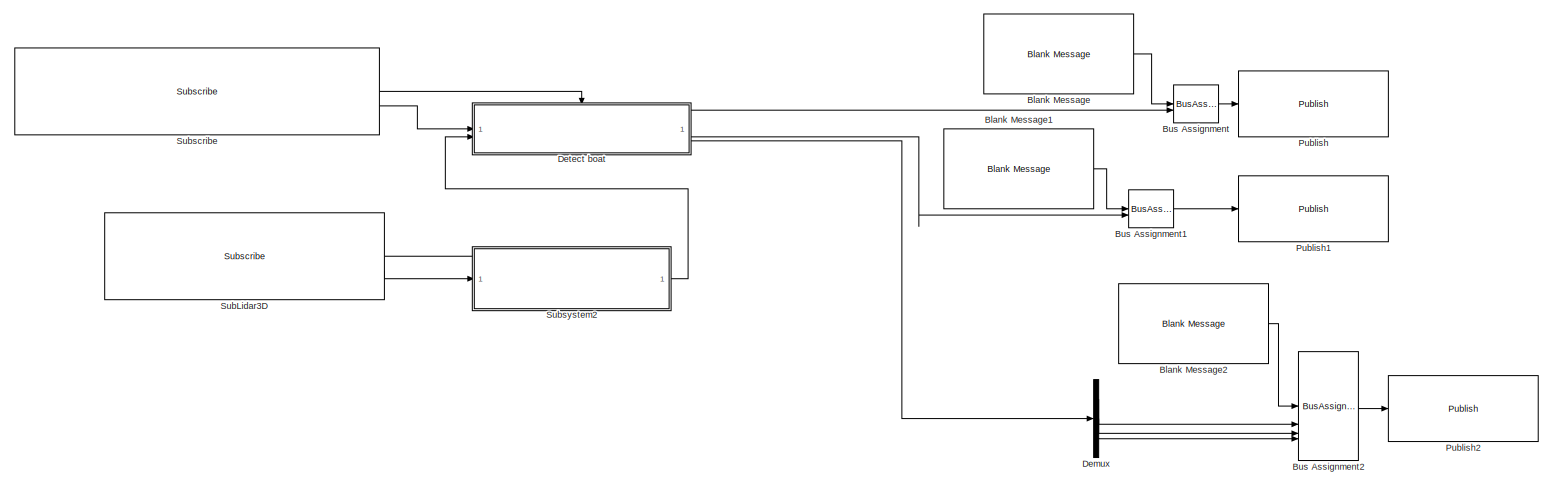
[diagram: root canvas - part 1/1, most of the canvas]
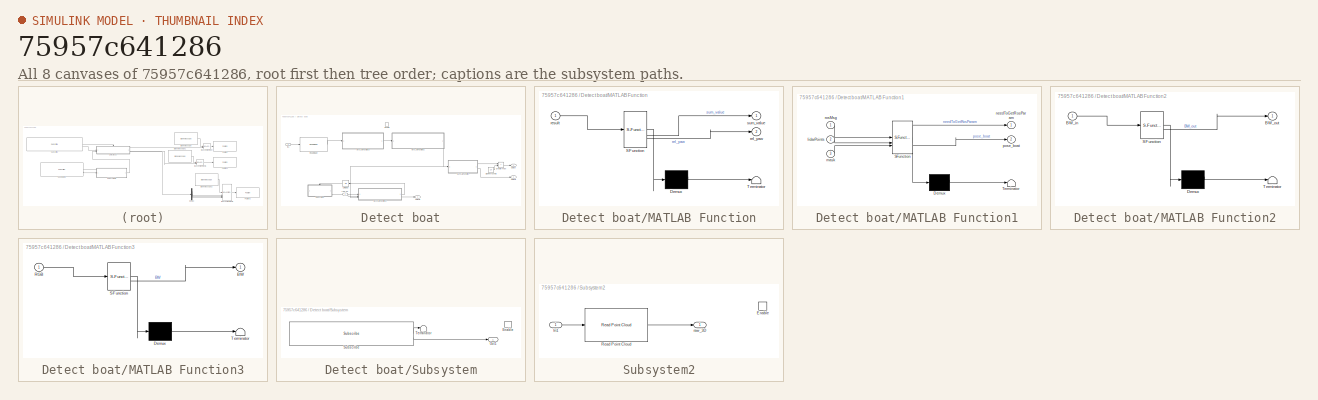
[diagram: thumbnail index - all 8 canvases of the model, root first then tree order]
MODEL slx_75957c641286
KIND model
CONFIG AbsTol = auto
CONFIG EnableMultiTasking = off
CONFIG FixedStep = auto
CONFIG MaxStep = auto
CONFIG MinStep = auto
CONFIG RelTol = 1e-3
CONFIG SampleTimeConstraint = Unconstrained
CONFIG SolverName = FixedStepAuto
CONFIG StartTime = 0.0
CONFIG StopTime = Inf
WORKSPACE source: mxarray member
WORKSPACE SL_ROS_VariableLengthArrays_MaxSizes: object (value not decoded)
BLOCK [Reference] Blank Message  REF=ros2lib/Blank Message  (lib defined in slx_3c1549211f48)
  SourceBlock = ros2lib/Blank Message
  SourceType = ROS2 Blank Message
BLOCK [Reference] Blank Message1  REF=ros2lib/Blank Message  (lib defined in slx_3c1549211f48)
  SourceBlock = ros2lib/Blank Message
  SourceType = ROS2 Blank Message
BLOCK [Reference] Blank Message2  REF=ros2lib/Blank Message  (lib defined in slx_3c1549211f48)
  SourceBlock = ros2lib/Blank Message
  SourceType = ROS2 Blank Message
BLOCK [BusAssignment] Bus Assignment
  AssignedSignals = data
BLOCK [BusAssignment] Bus Assignment1
  AssignedSignals = data
BLOCK [BusAssignment] Bus Assignment2
  AssignedSignals = pose.position.x,pose.position.y,pose.position.z
BLOCK [Demux] Demux
  Outputs = 3
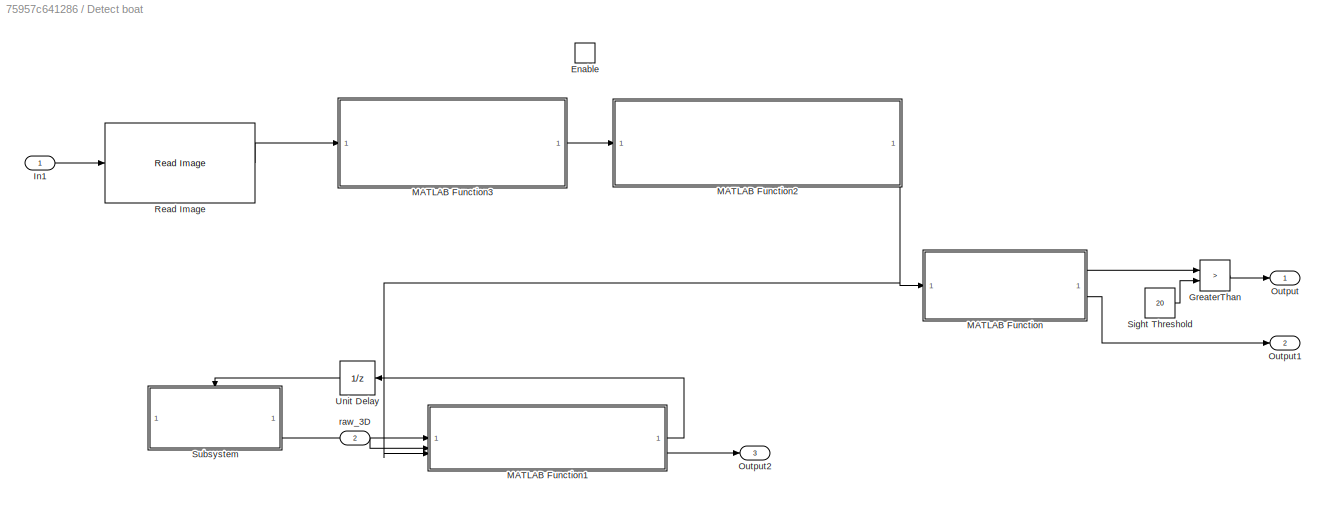
BLOCK [SubSystem] Detect boat
BLOCK [EnablePort] Detect boat/Enable
BLOCK [RelationalOperator] Detect boat/GreaterThan
  InputSameDT = off
  Operator = >
  OutDataTypeStr = boolean
  RndMeth = Simplest
BLOCK [Inport] Detect boat/In1
BLOCK [SubSystem] Detect boat/MATLAB Function
  ErrorFcn = Stateflow.Translate.translate
  PermitHierarchicalResolution = ExplicitOnly
  SFBlockType = MATLAB Function
  TreatAsAtomicUnit = on
BLOCK [Demux] Detect boat/MATLAB Function/ Demux 
  Outputs = 1
BLOCK [S-Function] Detect boat/MATLAB Function/ SFunction 
  EnableBusSupport = on
  FunctionName = sf_sfun
  PortCounts = [1 3]
  SFcnIsStateOwnerBlock = off
  SFunctionDeploymentMode = off
  Tag = Stateflow S-Function 2
BLOCK [Terminator] Detect boat/MATLAB Function/ Terminator 
BLOCK [Outport] Detect boat/MATLAB Function/rel_yaw
  Port = 2
BLOCK [Inport] Detect boat/MATLAB Function/result
BLOCK [Outport] Detect boat/MATLAB Function/sum_value
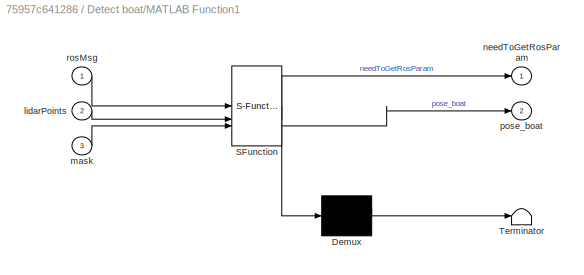
BLOCK [SubSystem] Detect boat/MATLAB Function1
  ErrorFcn = Stateflow.Translate.translate
  PermitHierarchicalResolution = ExplicitOnly
  SFBlockType = MATLAB Function
  TreatAsAtomicUnit = on
BLOCK [Demux] Detect boat/MATLAB Function1/ Demux 
  Outputs = 1
BLOCK [S-Function] Detect boat/MATLAB Function1/ SFunction 
  EnableBusSupport = on
  FunctionName = sf_sfun
  PortCounts = [3 3]
  SFcnIsStateOwnerBlock = off
  SFunctionDeploymentMode = off
  Tag = Stateflow S-Function 1
BLOCK [Terminator] Detect boat/MATLAB Function1/ Terminator 
BLOCK [Inport] Detect boat/MATLAB Function1/lidarPoints
  Port = 2
BLOCK [Inport] Detect boat/MATLAB Function1/mask
  Port = 3
BLOCK [Outport] Detect boat/MATLAB Function1/needToGetRosParam
BLOCK [Outport] Detect boat/MATLAB Function1/pose_boat
  Port = 2
BLOCK [Inport] Detect boat/MATLAB Function1/rosMsg
BLOCK [SubSystem] Detect boat/MATLAB Function2
  ErrorFcn = Stateflow.Translate.translate
  PermitHierarchicalResolution = ExplicitOnly
  SFBlockType = MATLAB Function
  TreatAsAtomicUnit = on
BLOCK [Demux] Detect boat/MATLAB Function2/ Demux 
  Outputs = 1
BLOCK [S-Function] Detect boat/MATLAB Function2/ SFunction 
  EnableBusSupport = on
  FunctionName = sf_sfun
  PortCounts = [1 2]
  SFcnIsStateOwnerBlock = off
  SFunctionDeploymentMode = off
  Tag = Stateflow S-Function 5
BLOCK [Terminator] Detect boat/MATLAB Function2/ Terminator 
BLOCK [Inport] Detect boat/MATLAB Function2/BW_in
BLOCK [Outport] Detect boat/MATLAB Function2/BW_out
BLOCK [SubSystem] Detect boat/MATLAB Function3
  ErrorFcn = Stateflow.Translate.translate
  PermitHierarchicalResolution = ExplicitOnly
  SFBlockType = MATLAB Function
  TreatAsAtomicUnit = on
BLOCK [Demux] Detect boat/MATLAB Function3/ Demux 
  Outputs = 1
BLOCK [S-Function] Detect boat/MATLAB Function3/ SFunction 
  EnableBusSupport = on
  FunctionName = sf_sfun
  PortCounts = [1 2]
  SFcnIsStateOwnerBlock = off
  SFunctionDeploymentMode = off
  Tag = Stateflow S-Function 10
BLOCK [Terminator] Detect boat/MATLAB Function3/ Terminator 
BLOCK [Outport] Detect boat/MATLAB Function3/BW
BLOCK [Inport] Detect boat/MATLAB Function3/RGB
BLOCK [Outport] Detect boat/Output
BLOCK [Outport] Detect boat/Output1
  Port = 2
BLOCK [Outport] Detect boat/Output2
  Port = 3
BLOCK [Reference] Detect boat/Read Image  REF=ros2lib/Read Image  (lib defined in slx_3c1549211f48)
  SourceBlock = ros2lib/Read Image
  SourceType = ros.slros2.internal.block.ReadImage
BLOCK [Constant] Detect boat/Sight Threshold
  Value = 20
BLOCK [SubSystem] Detect boat/Subsystem
BLOCK [EnablePort] Detect boat/Subsystem/Enable
BLOCK [Outport] Detect boat/Subsystem/Out1
BLOCK [Reference] Detect boat/Subsystem/Subscribe  REF=ros2lib/Subscribe  (lib defined in slx_3c1549211f48)
  SourceBlock = ros2lib/Subscribe
  SourceType = ROS2 Subscribe
BLOCK [Terminator] Detect boat/Subsystem/Terminator
BLOCK [UnitDelay] Detect boat/Unit Delay
  HasFrameUpgradeWarning = on
  InitialCondition = 1
  SampleTime = -1
BLOCK [Inport] Detect boat/raw_3D
  Port = 2
BLOCK [Reference] Publish  REF=ros2lib/Publish  (lib defined in slx_3c1549211f48)
  SourceBlock = ros2lib/Publish
  SourceType = ROS2 Publish
BLOCK [Reference] Publish1  REF=ros2lib/Publish  (lib defined in slx_3c1549211f48)
  SourceBlock = ros2lib/Publish
  SourceType = ROS2 Publish
BLOCK [Reference] Publish2  REF=ros2lib/Publish  (lib defined in slx_3c1549211f48)
  SourceBlock = ros2lib/Publish
  SourceType = ROS2 Publish
BLOCK [Reference] SubLidar3D  REF=ros2lib/Subscribe  (lib defined in slx_3c1549211f48)
  SourceBlock = ros2lib/Subscribe
  SourceType = ROS2 Subscribe
BLOCK [Reference] Subscribe  REF=ros2lib/Subscribe  (lib defined in slx_3c1549211f48)
  SourceBlock = ros2lib/Subscribe
  SourceType = ROS2 Subscribe
BLOCK [SubSystem] Subsystem2
BLOCK [EnablePort] Subsystem2/Enable
BLOCK [Inport] Subsystem2/In1
BLOCK [Reference] Subsystem2/Read Point Cloud  REF=ros2lib/Read Point Cloud  (lib defined in slx_3c1549211f48)
  SourceBlock = ros2lib/Read Point Cloud
  SourceType = ros.slros2.internal.block.ReadPointCloud
BLOCK [Outport] Subsystem2/raw_3D
LINE Blank Message1:1 -> Bus Assignment1:1
LINE Blank Message2:1 -> Bus Assignment2:1
LINE Blank Message:1 -> Bus Assignment:1
LINE Bus Assignment1:1 -> Publish1:1
LINE Bus Assignment2:1 -> Publish2:1
LINE Bus Assignment:1 -> Publish:1
LINE Demux:1 -> Bus Assignment2:2
LINE Demux:2 -> Bus Assignment2:3
LINE Demux:3 -> Bus Assignment2:4
LINE Detect boat/GreaterThan:1 -> Detect boat/Output:1
LINE Detect boat/In1:1 -> Detect boat/Read Image:1
LINE Detect boat/MATLAB Function1:1 -> Detect boat/Unit Delay:1
LINE Detect boat/MATLAB Function1:2 -> Detect boat/Output2:1
NET Detect boat/MATLAB Function2:1 -> Detect boat/MATLAB Function1:3, Detect boat/MATLAB Function:1
LINE Detect boat/MATLAB Function3:1 -> Detect boat/MATLAB Function2:1
LINE Detect boat/MATLAB Function:1 -> Detect boat/GreaterThan:1
LINE Detect boat/MATLAB Function:2 -> Detect boat/Output1:1
LINE Detect boat/Read Image:1 -> Detect boat/MATLAB Function3:1
LINE Detect boat/Sight Threshold:1 -> Detect boat/GreaterThan:2
LINE Detect boat/Subsystem/Subscribe:1 -> Detect boat/Subsystem/Terminator:1
LINE Detect boat/Subsystem/Subscribe:2 -> Detect boat/Subsystem/Out1:1
LINE Detect boat/Subsystem:1 -> Detect boat/MATLAB Function1:1
LINE Detect boat/Unit Delay:1 -> Detect boat/Subsystem:enable
LINE Detect boat/raw_3D:1 -> Detect boat/MATLAB Function1:2
LINE Detect boat:1 -> Bus Assignment:2
LINE Detect boat:2 -> Bus Assignment1:2
LINE Detect boat:3 -> Demux:1
LINE SubLidar3D:1 -> Subsystem2:enable
LINE SubLidar3D:2 -> Subsystem2:1
LINE Subscribe:1 -> Detect boat:enable
LINE Subscribe:2 -> Detect boat:1
LINE Subsystem2/In1:1 -> Subsystem2/Read Point Cloud:1
LINE Subsystem2/Read Point Cloud:1 -> Subsystem2/raw_3D:1
LINE Subsystem2:1 -> Detect boat:2
note: NET lines group one-source signal fan-out (src -> all destinations, sorted); 1:1 wires keep LINE
CHART Detect boat/MATLAB Function1 states=1 transitions=1
  STATE_LABEL 'eML_blk_kernel()'
  STATE_LABEL 'SCRIPT:\nfunction [needToGetRosParam, pose_boat]= projectLidarOnCam(rosMsg, lidarPoints, mask)\n    if rosMsg.d_SL_Info.ReceivedLength <= 0\n        needToGetRosParam = 1;\n        pose_boat = [0 0 0];\n        return;\n    end\n    needToGetRosParam = 0;\n\n    % Filter ground from Lidar\n    % pc = pcorganize(pointCloud(lidarPoints), lidarParameters(16, [pi/12 -pi/12], 1875));\n    % groundPtsIdx = segment...<+595ch>'
CHART Detect boat/MATLAB Function states=1 transitions=1
  STATE_LABEL 'eML_blk_kernel()'
  STATE_LABEL 'SCRIPT:\nfunction [sum_value, rel_yaw] = checkEnnemy(result)\n    sum_value = sum(result, "all");\n    \n    reg = regionprops(result,\'centroid\');\n    if size(reg, 1) >= 1\n        rel_yaw = ((reg(1).Centroid(1)/size(result,2))-0.5) * pi;\n    else\n        rel_yaw = 0;\n    end\nend'
CHART Detect boat/MATLAB Function2 states=1 transitions=1
  STATE_LABEL 'eML_blk_kernel()'
  STATE_LABEL "SCRIPT:\nfunction BW_out  = filterRegions(BW_in)\n%filterRegions Filter BW image using auto-generated code from imageRegionAnalyzer app.\n\n% Auto-generated by imageRegionAnalyzer app on 24-Nov-2023\n%---------------------------------------------------------\n\n BW_out = bwpropfilt(BW_in,'Area',[0 10000]);\n\n \n%  %Load ground truth data from a MAT-file into the workspace. Extract the\n% %image and point cl...<+806ch>"
CHART Detect boat/MATLAB Function3 states=1 transitions=1
  STATE_LABEL 'eML_blk_kernel()'
  STATE_LABEL 'SCRIPT:\nfunction BW = createMask(RGB)\n%createMask  Threshold RGB image using auto-generated code from colorThresholder app.\n%  [BW,MASKEDRGBIMAGE] = createMask(RGB) thresholds image RGB using\n%  auto-generated code from the colorThresholder app. The colorspace and\n%  range for each channel of the colorspace were set within the app. The\n%  segmentation mask is returned in BW, and a composite of the...<+990ch>'
CHART  states=0 transitions=0
CHART  states=0 transitions=0
CHART  states=0 transitions=0
CHART  states=0 transitions=0
